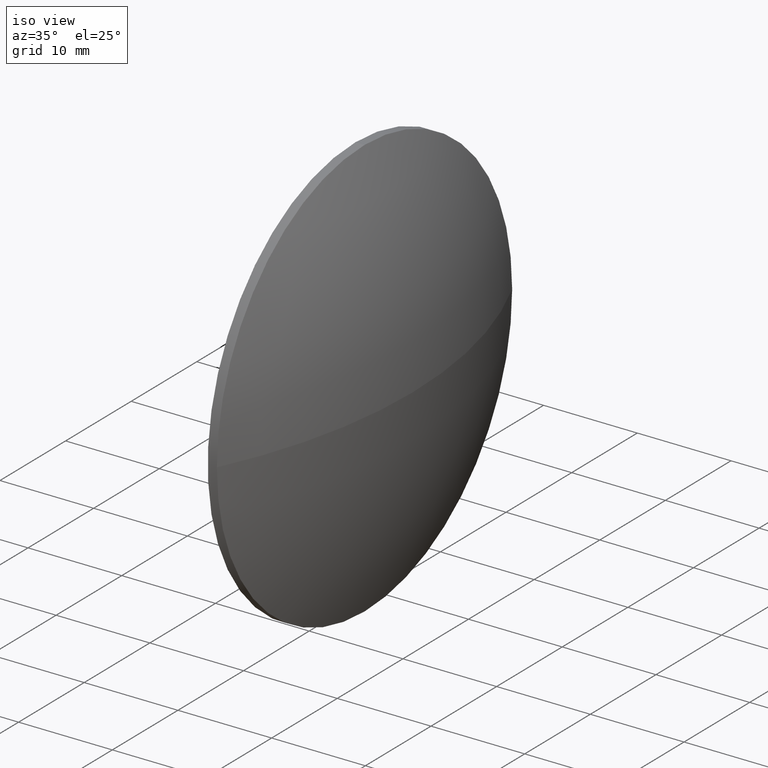
[diagram: clean part render]
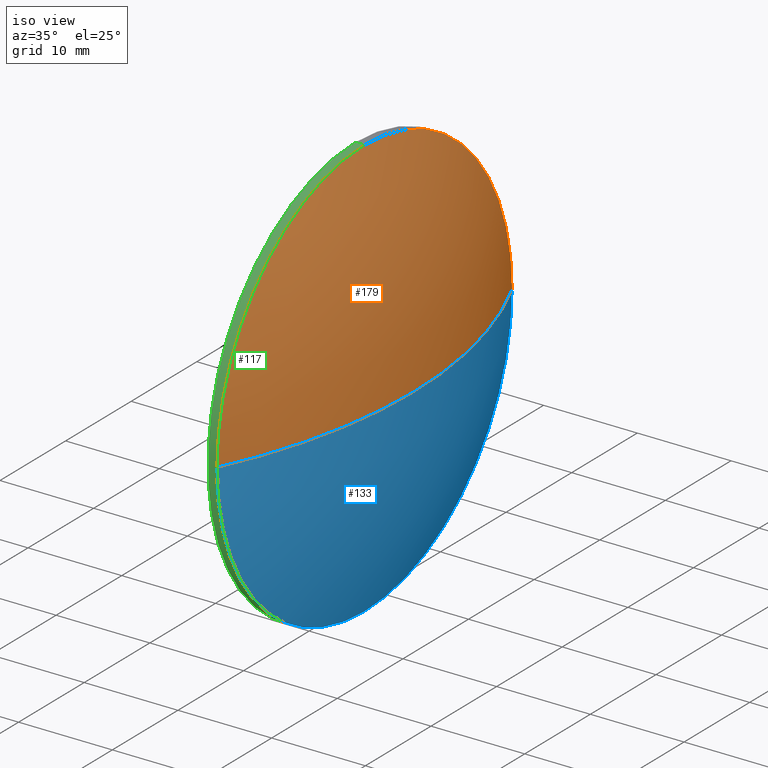
[diagram: same view with three faces highlighted in distinct colors, each labeled with its STEP entity id]
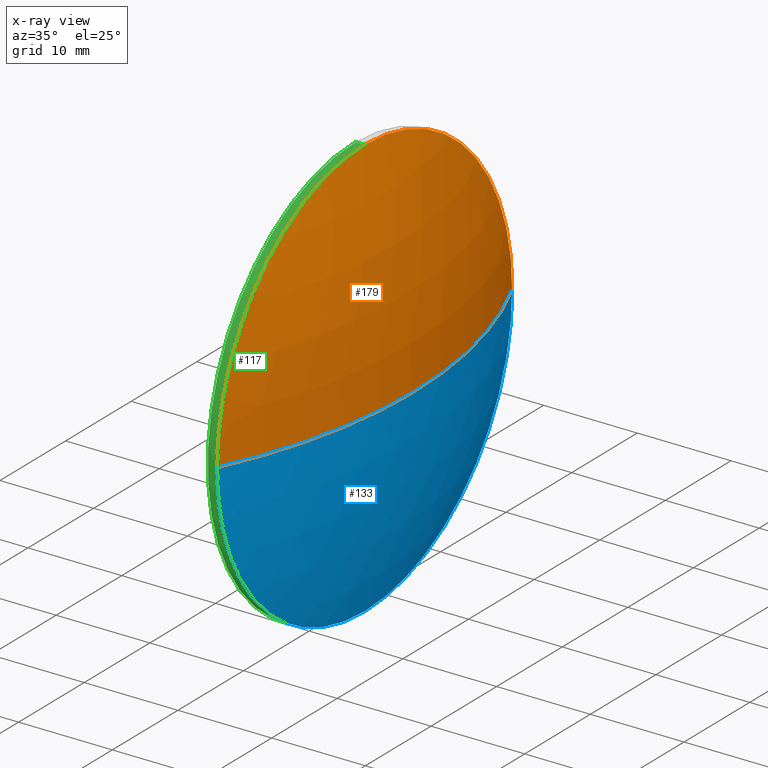
[diagram: x-ray of the same camera — body ghosted, the three highlighted faces saturated]
A machine part, iso view with three faces highlighted in distinct colors.
The next image is the same camera in x-ray (body ghosted, the three faces saturated) — at least one of them is partly hidden behind the body in this view.
Their STEP definitions:

[orange] entity #179 — the highlighted spherical surface has radius 51.9071 mm.
#2 = CARTESIAN_POINT ( 'NONE',  ( 192.8294665386367500, -255.6056703500554500, 0.0000000000000000000 ) ) ;
#7 = AXIS2_PLACEMENT_3D ( 'NONE', #10, #29, #166 ) ;
#10 = CARTESIAN_POINT ( 'NONE',  ( 146.0523612754788600, -255.6056703500554500, 0.0000000000000000000 ) ) ;
#14 = VERTEX_POINT ( 'NONE', #71 ) ;
#29 = DIRECTION ( 'NONE',  ( -0.0000000000000000000, 0.0000000000000000000, 1.000000000000000000 ) ) ;
#30 = CIRCLE ( 'NONE', #129, 51.90710526315789500 ) ;
#43 = EDGE_CURVE ( 'NONE', #14, #102, #131, .T. ) ;
#44 = AXIS2_PLACEMENT_3D ( 'NONE', #127, #74, #62 ) ;
#62 = DIRECTION ( 'NONE',  ( 0.0000000000000000000, 1.000000000000000000, 0.0000000000000000000 ) ) ;
#65 = VERTEX_POINT ( 'NONE', #139 ) ;
#67 = CIRCLE ( 'NONE', #7, 51.90710526315789500 ) ;
#71 = CARTESIAN_POINT ( 'NONE',  ( 192.8294665386367500, -278.1056703500553900, -2.755455298081544000E-015 ) ) ;
#74 = DIRECTION ( 'NONE',  ( -0.0000000000000000000, 0.0000000000000000000, -1.000000000000000000 ) ) ;
#76 = ORIENTED_EDGE ( 'NONE', *, *, #43, .F. ) ;
#80 = ORIENTED_EDGE ( 'NONE', *, *, #99, .T. ) ;
#81 = DIRECTION ( 'NONE',  ( -1.000000000000000000, -0.0000000000000000000, -0.0000000000000000000 ) ) ;
#82 = DIRECTION ( 'NONE',  ( 0.0000000000000000000, 1.224646799147353200E-016, -1.000000000000000000 ) ) ;
#85 = VERTEX_POINT ( 'NONE', #140 ) ;
#91 = SPHERICAL_SURFACE ( 'NONE', #44, 51.90710526315789500 ) ;
#98 = DIRECTION ( 'NONE',  ( -1.000000000000000000, -0.0000000000000000000, -0.0000000000000000000 ) ) ;
#99 = EDGE_CURVE ( 'NONE', #65, #85, #67, .T. ) ;
#101 = ORIENTED_EDGE ( 'NONE', *, *, #155, .F. ) ;
#102 = VERTEX_POINT ( 'NONE', #122 ) ;
#110 = DIRECTION ( 'NONE',  ( 0.0000000000000000000, 0.0000000000000000000, 1.000000000000000000 ) ) ;
#122 = CARTESIAN_POINT ( 'NONE',  ( 192.8294665386367500, -255.6056703500554500, 22.49999999999999300 ) ) ;
#124 = DIRECTION ( 'NONE',  ( 0.0000000000000000000, 1.000000000000000000, 1.224646799147353200E-016 ) ) ;
#127 = CARTESIAN_POINT ( 'NONE',  ( 146.0523612754788600, -255.6056703500554500, 0.0000000000000000000 ) ) ;
#129 = AXIS2_PLACEMENT_3D ( 'NONE', #172, #82, #124 ) ;
#131 = CIRCLE ( 'NONE', #160, 22.49999999999999300 ) ;
#139 = CARTESIAN_POINT ( 'NONE',  ( 197.9594665386367500, -255.6056703500554500, 0.0000000000000000000 ) ) ;
#140 = CARTESIAN_POINT ( 'NONE',  ( 192.8294665386367500, -233.1056703500554500, 0.0000000000000000000 ) ) ;
#142 = CARTESIAN_POINT ( 'NONE',  ( 192.8294665386367500, -255.6056703500554500, 0.0000000000000000000 ) ) ;
#145 = ORIENTED_EDGE ( 'NONE', *, *, #182, .F. ) ;
#153 = EDGE_LOOP ( 'NONE', ( #145, #80, #101, #76 ) ) ;
#155 = EDGE_CURVE ( 'NONE', #102, #85, #175, .T. ) ;
#160 = AXIS2_PLACEMENT_3D ( 'NONE', #142, #81, #183 ) ;
#162 = FACE_OUTER_BOUND ( 'NONE', #153, .T. ) ;
#166 = DIRECTION ( 'NONE',  ( 1.000000000000000000, 0.0000000000000000000, 0.0000000000000000000 ) ) ;
#170 = AXIS2_PLACEMENT_3D ( 'NONE', #2, #98, #110 ) ;
#172 = CARTESIAN_POINT ( 'NONE',  ( 146.0523612754788600, -255.6056703500554500, 0.0000000000000000000 ) ) ;
#175 = CIRCLE ( 'NONE', #170, 22.49999999999999300 ) ;
#179 = ADVANCED_FACE ( 'NONE', ( #162 ), #91, .T. ) ;
#182 = EDGE_CURVE ( 'NONE', #65, #14, #30, .T. ) ;
#183 = DIRECTION ( 'NONE',  ( 0.0000000000000000000, 0.0000000000000000000, 1.000000000000000000 ) ) ;

[blue] entity #133 — the highlighted spherical surface has radius 51.9071 mm.
#7 = AXIS2_PLACEMENT_3D ( 'NONE', #10, #29, #166 ) ;
#9 = EDGE_LOOP ( 'NONE', ( #165, #107, #77, #83 ) ) ;
#10 = CARTESIAN_POINT ( 'NONE',  ( 146.0523612754788600, -255.6056703500554500, 0.0000000000000000000 ) ) ;
#14 = VERTEX_POINT ( 'NONE', #71 ) ;
#29 = DIRECTION ( 'NONE',  ( -0.0000000000000000000, 0.0000000000000000000, 1.000000000000000000 ) ) ;
#30 = CIRCLE ( 'NONE', #129, 51.90710526315789500 ) ;
#31 = DIRECTION ( 'NONE',  ( -0.0000000000000000000, 0.0000000000000000000, -1.000000000000000000 ) ) ;
#32 = DIRECTION ( 'NONE',  ( -1.000000000000000000, -0.0000000000000000000, -0.0000000000000000000 ) ) ;
#50 = CARTESIAN_POINT ( 'NONE',  ( 192.8294665386367500, -255.6056703500554500, -22.49999999999999300 ) ) ;
#63 = DIRECTION ( 'NONE',  ( 0.0000000000000000000, 0.0000000000000000000, 1.000000000000000000 ) ) ;
#65 = VERTEX_POINT ( 'NONE', #139 ) ;
#67 = CIRCLE ( 'NONE', #7, 51.90710526315789500 ) ;
#71 = CARTESIAN_POINT ( 'NONE',  ( 192.8294665386367500, -278.1056703500553900, -2.755455298081544000E-015 ) ) ;
#75 = DIRECTION ( 'NONE',  ( 0.0000000000000000000, 0.0000000000000000000, 1.000000000000000000 ) ) ;
#77 = ORIENTED_EDGE ( 'NONE', *, *, #125, .F. ) ;
#82 = DIRECTION ( 'NONE',  ( 0.0000000000000000000, 1.224646799147353200E-016, -1.000000000000000000 ) ) ;
#83 = ORIENTED_EDGE ( 'NONE', *, *, #119, .F. ) ;
#85 = VERTEX_POINT ( 'NONE', #140 ) ;
#95 = DIRECTION ( 'NONE',  ( 0.0000000000000000000, 1.000000000000000000, 0.0000000000000000000 ) ) ;
#96 = DIRECTION ( 'NONE',  ( -1.000000000000000000, -0.0000000000000000000, -0.0000000000000000000 ) ) ;
#99 = EDGE_CURVE ( 'NONE', #65, #85, #67, .T. ) ;
#104 = AXIS2_PLACEMENT_3D ( 'NONE', #147, #96, #75 ) ;
#107 = ORIENTED_EDGE ( 'NONE', *, *, #182, .T. ) ;
#108 = CARTESIAN_POINT ( 'NONE',  ( 146.0523612754788600, -255.6056703500554500, 0.0000000000000000000 ) ) ;
#119 = EDGE_CURVE ( 'NONE', #85, #169, #150, .T. ) ;
#120 = FACE_OUTER_BOUND ( 'NONE', #9, .T. ) ;
#124 = DIRECTION ( 'NONE',  ( 0.0000000000000000000, 1.000000000000000000, 1.224646799147353200E-016 ) ) ;
#125 = EDGE_CURVE ( 'NONE', #169, #14, #164, .T. ) ;
#126 = AXIS2_PLACEMENT_3D ( 'NONE', #185, #32, #63 ) ;
#129 = AXIS2_PLACEMENT_3D ( 'NONE', #172, #82, #124 ) ;
#133 = ADVANCED_FACE ( 'NONE', ( #120 ), #178, .T. ) ;
#138 = AXIS2_PLACEMENT_3D ( 'NONE', #108, #31, #95 ) ;
#139 = CARTESIAN_POINT ( 'NONE',  ( 197.9594665386367500, -255.6056703500554500, 0.0000000000000000000 ) ) ;
#140 = CARTESIAN_POINT ( 'NONE',  ( 192.8294665386367500, -233.1056703500554500, 0.0000000000000000000 ) ) ;
#147 = CARTESIAN_POINT ( 'NONE',  ( 192.8294665386367500, -255.6056703500554500, 0.0000000000000000000 ) ) ;
#150 = CIRCLE ( 'NONE', #104, 22.49999999999999300 ) ;
#164 = CIRCLE ( 'NONE', #126, 22.49999999999999300 ) ;
#165 = ORIENTED_EDGE ( 'NONE', *, *, #99, .F. ) ;
#166 = DIRECTION ( 'NONE',  ( 1.000000000000000000, 0.0000000000000000000, 0.0000000000000000000 ) ) ;
#169 = VERTEX_POINT ( 'NONE', #50 ) ;
#172 = CARTESIAN_POINT ( 'NONE',  ( 146.0523612754788600, -255.6056703500554500, 0.0000000000000000000 ) ) ;
#178 = SPHERICAL_SURFACE ( 'NONE', #138, 51.90710526315789500 ) ;
#182 = EDGE_CURVE ( 'NONE', #65, #14, #30, .T. ) ;
#185 = CARTESIAN_POINT ( 'NONE',  ( 192.8294665386367500, -255.6056703500554500, 0.0000000000000000000 ) ) ;

[green] entity #117 — the highlighted cylindrical surface (partial cylindrical patch) has radius 22.5 mm, axis along (-1, -0, -0).
#13 = VECTOR ( 'NONE', #97, 1000.000000000000000 ) ;
#14 = VERTEX_POINT ( 'NONE', #71 ) ;
#15 = DIRECTION ( 'NONE',  ( -1.000000000000000000, -0.0000000000000000000, -0.0000000000000000000 ) ) ;
#20 = ORIENTED_EDGE ( 'NONE', *, *, #146, .F. ) ;
#24 = VECTOR ( 'NONE', #33, 1000.000000000000000 ) ;
#25 = AXIS2_PLACEMENT_3D ( 'NONE', #158, #15, #51 ) ;
#32 = DIRECTION ( 'NONE',  ( -1.000000000000000000, -0.0000000000000000000, -0.0000000000000000000 ) ) ;
#33 = DIRECTION ( 'NONE',  ( -1.000000000000000000, -0.0000000000000000000, -0.0000000000000000000 ) ) ;
#37 = EDGE_LOOP ( 'NONE', ( #20, #42, #157, #136, #121 ) ) ;
#42 = ORIENTED_EDGE ( 'NONE', *, *, #125, .T. ) ;
#43 = EDGE_CURVE ( 'NONE', #14, #102, #131, .T. ) ;
#48 = LINE ( 'NONE', #84, #24 ) ;
#50 = CARTESIAN_POINT ( 'NONE',  ( 192.8294665386367500, -255.6056703500554500, -22.49999999999999300 ) ) ;
#51 = DIRECTION ( 'NONE',  ( 0.0000000000000000000, 0.0000000000000000000, 1.000000000000000000 ) ) ;
#55 = VERTEX_POINT ( 'NONE', #69 ) ;
#57 = CIRCLE ( 'NONE', #25, 22.49999999999999300 ) ;
#61 = FACE_OUTER_BOUND ( 'NONE', #37, .T. ) ;
#63 = DIRECTION ( 'NONE',  ( 0.0000000000000000000, 0.0000000000000000000, 1.000000000000000000 ) ) ;
#69 = CARTESIAN_POINT ( 'NONE',  ( 191.8594665386367500, -255.6056703500554500, -22.49999999999999300 ) ) ;
#71 = CARTESIAN_POINT ( 'NONE',  ( 192.8294665386367500, -278.1056703500553900, -2.755455298081544000E-015 ) ) ;
#81 = DIRECTION ( 'NONE',  ( -1.000000000000000000, -0.0000000000000000000, -0.0000000000000000000 ) ) ;
#84 = CARTESIAN_POINT ( 'NONE',  ( 187.8163450691519100, -255.6056703500554500, -22.49999999999999300 ) ) ;
#93 = DIRECTION ( 'NONE',  ( -1.000000000000000000, -0.0000000000000000000, -0.0000000000000000000 ) ) ;
#97 = DIRECTION ( 'NONE',  ( -1.000000000000000000, -0.0000000000000000000, -0.0000000000000000000 ) ) ;
#102 = VERTEX_POINT ( 'NONE', #122 ) ;
#109 = LINE ( 'NONE', #123, #13 ) ;
#117 = ADVANCED_FACE ( 'NONE', ( #61 ), #134, .T. ) ;
#121 = ORIENTED_EDGE ( 'NONE', *, *, #130, .F. ) ;
#122 = CARTESIAN_POINT ( 'NONE',  ( 192.8294665386367500, -255.6056703500554500, 22.49999999999999300 ) ) ;
#123 = CARTESIAN_POINT ( 'NONE',  ( 187.8163450691519100, -255.6056703500554500, 22.49999999999999300 ) ) ;
#125 = EDGE_CURVE ( 'NONE', #169, #14, #164, .T. ) ;
#126 = AXIS2_PLACEMENT_3D ( 'NONE', #185, #32, #63 ) ;
#130 = EDGE_CURVE ( 'NONE', #55, #159, #57, .T. ) ;
#131 = CIRCLE ( 'NONE', #160, 22.49999999999999300 ) ;
#134 = CYLINDRICAL_SURFACE ( 'NONE', #144, 22.49999999999999300 ) ;
#136 = ORIENTED_EDGE ( 'NONE', *, *, #176, .T. ) ;
#141 = CARTESIAN_POINT ( 'NONE',  ( 187.8163450691519100, -255.6056703500554500, 0.0000000000000000000 ) ) ;
#142 = CARTESIAN_POINT ( 'NONE',  ( 192.8294665386367500, -255.6056703500554500, 0.0000000000000000000 ) ) ;
#143 = CARTESIAN_POINT ( 'NONE',  ( 191.8594665386367500, -255.6056703500554500, 22.49999999999999300 ) ) ;
#144 = AXIS2_PLACEMENT_3D ( 'NONE', #141, #93, #184 ) ;
#146 = EDGE_CURVE ( 'NONE', #169, #55, #48, .T. ) ;
#157 = ORIENTED_EDGE ( 'NONE', *, *, #43, .T. ) ;
#158 = CARTESIAN_POINT ( 'NONE',  ( 191.8594665386367500, -255.6056703500554500, 0.0000000000000000000 ) ) ;
#159 = VERTEX_POINT ( 'NONE', #143 ) ;
#160 = AXIS2_PLACEMENT_3D ( 'NONE', #142, #81, #183 ) ;
#164 = CIRCLE ( 'NONE', #126, 22.49999999999999300 ) ;
#169 = VERTEX_POINT ( 'NONE', #50 ) ;
#176 = EDGE_CURVE ( 'NONE', #102, #159, #109, .T. ) ;
#183 = DIRECTION ( 'NONE',  ( 0.0000000000000000000, 0.0000000000000000000, 1.000000000000000000 ) ) ;
#184 = DIRECTION ( 'NONE',  ( 0.0000000000000000000, 0.0000000000000000000, 1.000000000000000000 ) ) ;
#185 = CARTESIAN_POINT ( 'NONE',  ( 192.8294665386367500, -255.6056703500554500, 0.0000000000000000000 ) ) ;